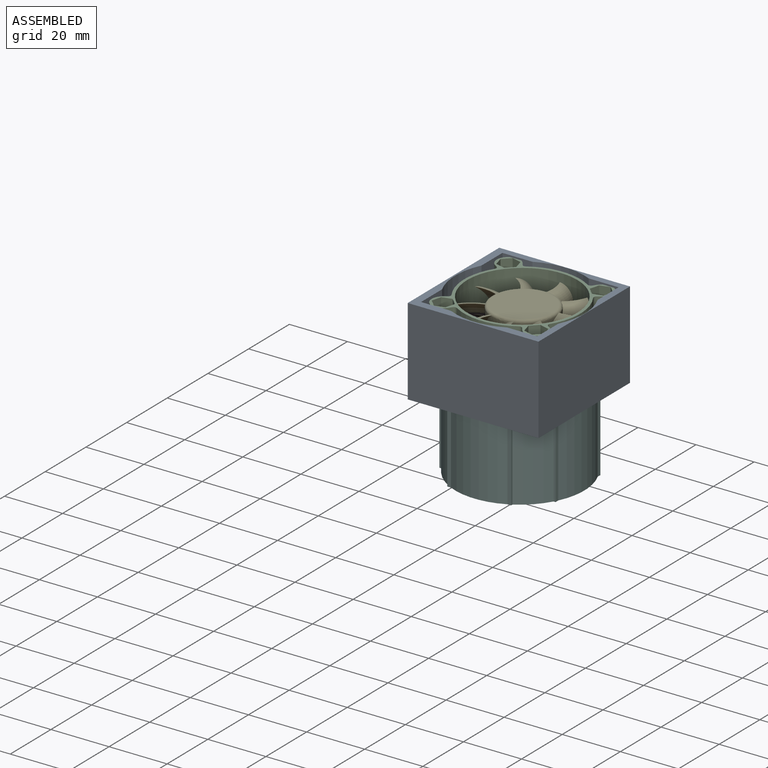
[diagram: assembled view]
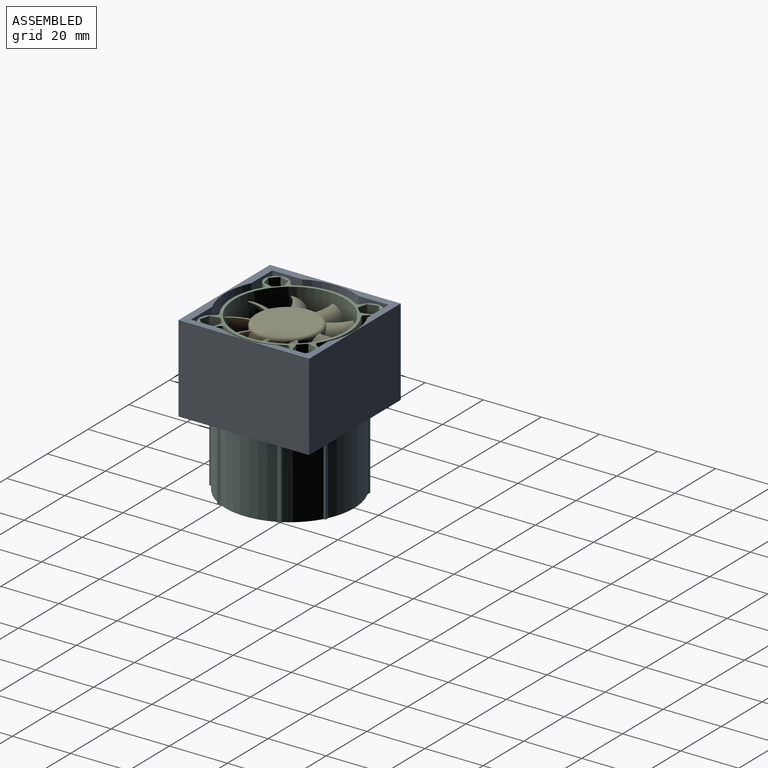
[diagram: assembled view, second angle]
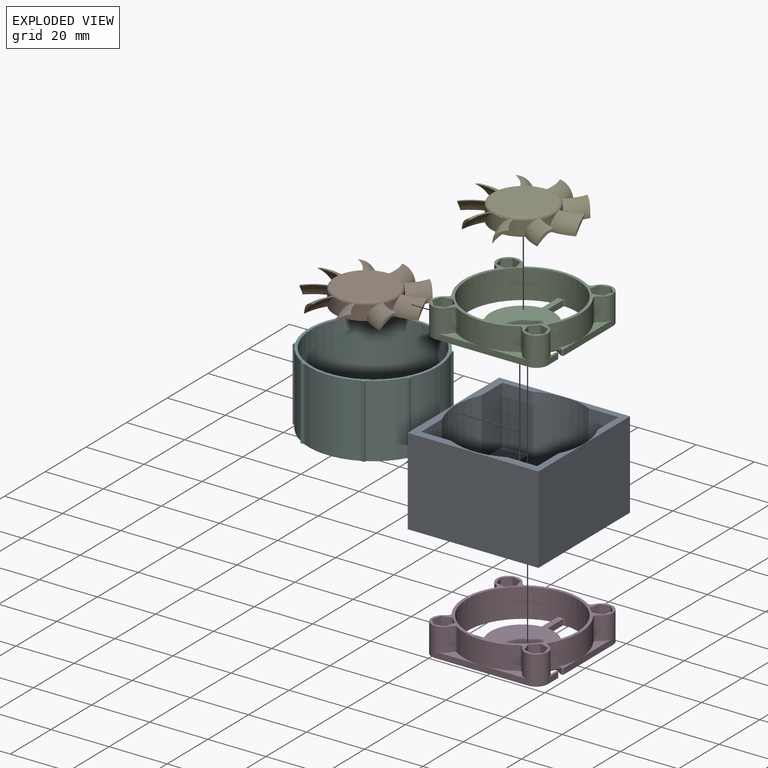
[diagram: exploded view]
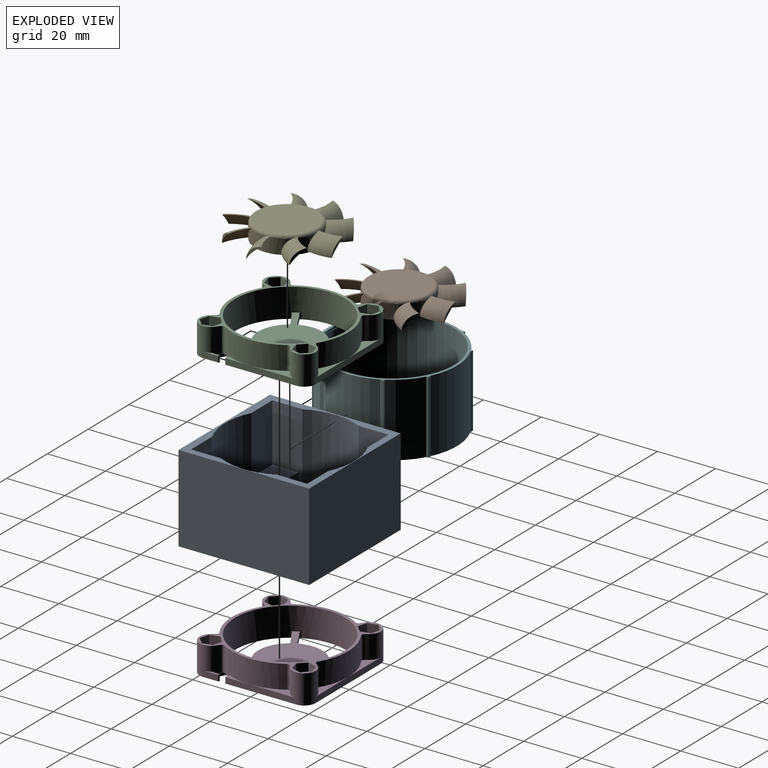
[diagram: exploded view, second angle]
ASSEMBLY  parts=6 mates=3
PART A: 30 faces, bbox 45x45x30 mm
  f0: plane 30x10.31mm, normal (-1,0,0), area 219.2mm2, adj f7,f8,f16,f17,f25,f26
  f1: plane 30x10.31mm, normal (0,-1,0), area 219.2mm2, adj f5,f6,f16,f17,f19,f20
  f2: plane 45x30mm, normal (1,0,0), area 1350mm2, adj f3,f15,f16,f17
  f3: plane 45x30mm, normal (0,1,0), area 1350mm2, adj f2,f4,f16,f17
  f4: plane 45x30mm, normal (-1,0,0), area 1350mm2, adj f3,f15,f16,f17
  f5: cylinder r=22.23mm len=30mm, axis (0,0,-1), area 601.9mm2, adj f1,f14,f16,f17
  f6: plane 30x10.31mm, normal (-1,0,0), area 219.2mm2, adj f1,f7,f16,f17,f18,f20
  f7: cylinder r=22.23mm len=30mm, axis (0,0,-1), area 601.9mm2, adj f0,f6,f16,f17
  f8: plane 30x10.31mm, normal (0,1,0), area 219.2mm2, adj f0,f9,f16,f17,f24,f26
  f9: cylinder r=22.23mm len=30mm, axis (0,0,-1), area 601.9mm2, adj f8,f10,f16,f17
  f10: plane 30x10.31mm, normal (0,1,0), area 219.2mm2, adj f9,f11,f16,f17,f28,f29
  f11: plane 30x10.31mm, normal (1,0,0), area 219.2mm2, adj f10,f12,f16,f17,f27,f29
  f12: cylinder r=22.23mm len=30mm, axis (0,0,-1), area 601.9mm2, adj f11,f13,f16,f17
  f13: plane 30x10.31mm, normal (1,0,0), area 219.2mm2, adj f12,f14,f16,f17,f22,f23
  f14: plane 30x10.31mm, normal (0,-1,0), area 219.2mm2, adj f5,f13,f16,f17,f21,f23
  f15: plane 45x30mm, normal (0,-1,0), area 1350mm2, adj f2,f4,f16,f17
  f16: plane 45x45mm, normal (0,0,1), area 308.7mm2, adj f0,f1,f2,f3,f4,f5,f6,f7
  f17: plane 45x45mm, normal (0,0,-1), area 632.7mm2, adj f0,f1,f2,f3,f4,f5,f6,f7
  f18: plane 10x9mm, normal (0,-1,0), area 90mm2, adj f6,f17,f19,f20
  f19: plane 10x9mm, normal (-1,0,0), area 90mm2, adj f1,f17,f18,f20
  f20: plane 9x9mm, normal (0,0,1), area 81mm2, adj f1,f6,f18,f19
  f21: plane 10x9mm, normal (1,0,0), area 90mm2, adj f14,f17,f22,f23
  f22: plane 10x9mm, normal (0,-1,0), area 90mm2, adj f13,f17,f21,f23
  f23: plane 9x9mm, normal (0,0,1), area 81mm2, adj f13,f14,f21,f22
  f24: plane 10x9mm, normal (-1,0,0), area 90mm2, adj f8,f17,f25,f26
  f25: plane 10x9mm, normal (0,1,0), area 90mm2, adj f0,f17,f24,f26
  f26: plane 9x9mm, normal (0,0,1), area 81mm2, adj f0,f8,f24,f25
  f27: plane 10x9mm, normal (0,1,0), area 90mm2, adj f11,f17,f28,f29
  f28: plane 10x9mm, normal (1,0,0), area 90mm2, adj f10,f17,f27,f29
  f29: plane 9x9mm, normal (0,0,1), area 81mm2, adj f10,f11,f27,f28
PART B: 32 faces, bbox 42.3x42.5x6 mm
  f0: cylinder r=11mm len=22mm, axis (0,0,-1), area 307.6mm2, adj f1,f3,f4,f5,f6,f8,f9,f11
  f1: cylinder r=11mm len=4.52mm, axis (0,0,-1), area 3.9mm2, adj f0,f4,f11
  f2: plane 20x20mm, normal (0,0,1), area 314.2mm2, adj f4
  f3: plane 22x22mm, normal (0,0,-1), area 380.1mm2, adj f0
  f4: torus R=10mm, axis (0,0,1), area 102.2mm2, adj f0,f1,f2,f5,f6,f8,f9,f11
  f5: torus R=12.73mm, axis (0,0,-1), area 60.3mm2, adj f0,f4,f6,f7
  f6: torus R=5.4mm, axis (0,0,-1), area 55.4mm2, adj f0,f4,f5,f7
  f7: cylinder r=18.8mm len=4.97mm, axis (0,0,1), area 4.5mm2, adj f5,f6
  f8: torus R=12.73mm, axis (0,0,-1), area 60.3mm2, adj f0,f4,f9,f10
  f9: torus R=5.4mm, axis (0,0,-1), area 55.4mm2, adj f0,f4,f8,f10
  f10: cylinder r=18.8mm len=4.97mm, axis (0,0,1), area 4.5mm2, adj f8,f9
  f11: torus R=12.73mm, axis (0,0,-1), area 60.3mm2, adj f0,f1,f4,f12,f13
  f12: torus R=5.4mm, axis (0,0,-1), area 55.4mm2, adj f0,f4,f11,f13
  f13: cylinder r=18.8mm len=4.97mm, axis (0,0,1), area 4.5mm2, adj f11,f12
  f14: torus R=12.73mm, axis (0,0,-1), area 60.3mm2, adj f0,f4,f15,f16
  f15: torus R=5.4mm, axis (0,0,-1), area 55.4mm2, adj f0,f4,f14,f16
  f16: cylinder r=18.8mm len=4.97mm, axis (0,0,1), area 4.5mm2, adj f14,f15
  f17: torus R=12.73mm, axis (0,0,-1), area 60.3mm2, adj f0,f4,f18,f19
  f18: torus R=5.4mm, axis (0,0,-1), area 55.4mm2, adj f0,f4,f17,f19
  f19: cylinder r=18.8mm len=4.97mm, axis (0,0,1), area 4.5mm2, adj f17,f18
  f20: torus R=12.73mm, axis (0,0,-1), area 60.3mm2, adj f0,f4,f21,f22
  f21: torus R=5.4mm, axis (0,0,-1), area 55.4mm2, adj f0,f4,f20,f22
  f22: cylinder r=18.8mm len=4.99mm, axis (0,0,1), area 4.5mm2, adj f20,f21
  f23: torus R=12.73mm, axis (0,0,-1), area 60.3mm2, adj f0,f4,f24,f25
  f24: torus R=5.4mm, axis (0,0,-1), area 55.4mm2, adj f0,f4,f23,f25
  f25: cylinder r=18.8mm len=4.97mm, axis (0,0,1), area 4.5mm2, adj f23,f24
  f26: torus R=12.73mm, axis (0,0,-1), area 60.3mm2, adj f0,f4,f27,f28
  f27: torus R=5.4mm, axis (0,0,-1), area 55.4mm2, adj f0,f4,f26,f28
  f28: cylinder r=18.8mm len=5mm, axis (0,0,1), area 4.5mm2, adj f26,f27
  f29: torus R=12.73mm, axis (0,0,-1), area 60.3mm2, adj f0,f4,f30,f31
  f30: torus R=5.4mm, axis (0,0,-1), area 55.4mm2, adj f0,f4,f29,f31
  f31: cylinder r=18.8mm len=4.97mm, axis (0,0,1), area 4.5mm2, adj f29,f30
PART C: 115 faces, bbox 40x40x10 mm
  f0: plane 10.28x5.94mm, normal (0.5,0.87,0), area 11.9mm2, adj f19,f33,f35,f80,f81,f82
  f1: plane 2x1.78mm, normal (-1,0,0), area 3.6mm2, adj f8,f33,f81,f97
  f2: plane 16x3.21mm, normal (0,0,1), area 18mm2, adj f26,f27,f56,f57,f100
  f3: plane 16x3.21mm, normal (0,0,1), area 18mm2, adj f25,f26,f65,f69,f106
  f4: plane 16x3.21mm, normal (0,0,1), area 18mm2, adj f21,f22,f34,f60,f102
  f5: plane 16x3.21mm, normal (0,0,1), area 18mm2, adj f23,f24,f62,f63,f104
  f6: plane 16x3.21mm, normal (0,0,1), area 18mm2, adj f27,f28,f57,f58,f101
  f7: plane 35.04x31.24mm, normal (0,0,1), area 457.1mm2, adj f12,f13,f14,f15,f16,f17,f18,f30
  f8: plane 5.45x1.07mm, normal (0,0,1), area 3mm2, adj f1,f28,f29,f81,f96,f97
  f9: plane 16x3.21mm, normal (0,0,1), area 18mm2, adj f22,f23,f61,f62,f103
  f10: plane 8.58x1.89mm, normal (0,0,1), area 5.1mm2, adj f20,f21,f34,f76,f89
  f11: plane 16x3.21mm, normal (0,0,1), area 18mm2, adj f24,f25,f64,f65,f105
  f12: plane 7.04x2mm, normal (1,0,0), area 14.1mm2, adj f7,f33,f87,f92
  f13: cylinder r=19mm len=38mm, axis (0,0,1), area 1168mm2, adj f7,f33,f71,f83,f84,f85,f86,f87
  f14: plane 6.22x3.59mm, normal (0.5,0.87,0), area 14.4mm2, adj f7,f33,f88,f95
  f15: plane 6.09x3.52mm, normal (0.5,-0.87,0), area 14.1mm2, adj f7,f33,f84,f90
  f16: cylinder r=11mm len=16.31mm, axis (0,0,1), area 36.9mm2, adj f7,f33,f90,f94
  f17: plane 6.09x3.52mm, normal (-0.5,0.87,0), area 14.1mm2, adj f7,f33,f85,f91
  f18: plane 7.04x2mm, normal (-1,0,0), area 14.1mm2, adj f7,f33,f86,f93
  f19: cylinder r=11mm len=3.9mm, axis (0,0,1), area 4.4mm2, adj f0,f20,f33,f35,f77
  f20: plane 8.8x5.08mm, normal (-0.5,-0.87,0), area 6.1mm2, adj f10,f19,f33,f76,f77,f78,f89
  f21: plane 24.08x2mm, normal (1,0,0), area 48.2mm2, adj f4,f10,f22,f33,f89
  f22: cylinder r=4mm len=10mm, axis (0,0,1), area 124.5mm2, adj f4,f9,f21,f23,f33,f60,f61,f71
  f23: plane 32x2mm, normal (0,1,0), area 64mm2, adj f5,f9,f22,f24,f33
  f24: cylinder r=4mm len=10mm, axis (0,0,1), area 124.5mm2, adj f5,f11,f23,f25,f33,f63,f64,f71
  f25: plane 32x2mm, normal (-1,0,0), area 64mm2, adj f3,f11,f24,f26,f33
  f26: cylinder r=4mm len=10mm, axis (0,0,1), area 124.5mm2, adj f2,f3,f25,f27,f33,f56,f69,f71
  f27: plane 32x2mm, normal (0,-1,0), area 64mm2, adj f2,f6,f26,f28,f33
  f28: cylinder r=4mm len=10mm, axis (0,0,1), area 124.9mm2, adj f6,f8,f27,f29,f33,f58,f59,f71
  f29: plane 4.96x2mm, normal (1,0,0), area 9.9mm2, adj f8,f28,f33,f96
  f30: plane 6.22x3.59mm, normal (-0.5,-0.87,0), area 14.4mm2, adj f7,f33,f83,f94
  f31: cylinder r=11mm len=15.12mm, axis (0,0,1), area 40.3mm2, adj f7,f33,f91,f93
  f32: cylinder r=11mm len=13.49mm, axis (0,0,1), area 36.9mm2, adj f7,f33,f92,f95
  f33: plane 40x40mm, normal (0,0,-1), area 793.4mm2, adj f0,f1,f12,f13,f14,f15,f16,f17
  f34: cylinder r=20mm len=21.25mm, axis (0,0,1), area 180.4mm2, adj f4,f10,f71,f76,f79,f98,f102
  f35: plane 9.49x8.4mm, normal (0,0,-1), area 34.2mm2, adj f0,f19,f77,f79,f80
  f36: plane 3.35x3mm, normal (-0.26,-0.97,0), area 10.4mm2, adj f37,f70,f71,f75
  f37: plane 3.35x3mm, normal (-0.97,-0.26,0), area 10.4mm2, adj f36,f38,f71,f75
  f38: plane 3x2.45mm, normal (-0.71,0.71,0), area 10.4mm2, adj f37,f39,f71,f75
  f39: plane 3.35x3mm, normal (0.26,0.97,0), area 10.4mm2, adj f38,f40,f71,f75
  f40: plane 3.35x3mm, normal (0.97,0.26,0), area 10.4mm2, adj f39,f70,f71,f75
  f41: plane 3x2.45mm, normal (-0.71,0.71,0), area 10.4mm2, adj f42,f66,f71,f73
  f42: plane 3.35x3mm, normal (0.26,0.97,0), area 10.4mm2, adj f41,f43,f71,f73
  f43: plane 3.35x3mm, normal (0.97,0.26,0), area 10.4mm2, adj f42,f44,f71,f73
  f44: plane 3x2.45mm, normal (0.71,-0.71,0), area 10.4mm2, adj f43,f45,f71,f73
  f45: plane 3.35x3mm, normal (-0.26,-0.97,0), area 10.4mm2, adj f44,f66,f71,f73
  f46: plane 3.35x3mm, normal (-0.97,0.26,0), area 10.4mm2, adj f47,f67,f71,f72
  f47: plane 3.35x3mm, normal (-0.26,0.97,0), area 10.4mm2, adj f46,f48,f71,f72
  f48: plane 3x2.45mm, normal (0.71,0.71,0), area 10.4mm2, adj f47,f49,f71,f72
  f49: plane 3.35x3mm, normal (0.97,-0.26,0), area 10.4mm2, adj f48,f50,f71,f72
  f50: plane 3.35x3mm, normal (0.26,-0.97,0), area 10.4mm2, adj f49,f67,f71,f72
  f51: plane 3x2.45mm, normal (-0.71,-0.71,0), area 10.4mm2, adj f52,f68,f71,f74
  f52: plane 3.35x3mm, normal (-0.97,0.26,0), area 10.4mm2, adj f51,f53,f71,f74
  f53: plane 3.35x3mm, normal (-0.26,0.97,0), area 10.4mm2, adj f52,f54,f71,f74
  f54: plane 3x2.45mm, normal (0.71,0.71,0), area 10.4mm2, adj f53,f55,f71,f74
  f55: plane 3.35x3mm, normal (0.97,-0.26,0), area 10.4mm2, adj f54,f68,f71,f74
  f56: plane 8x1.06mm, normal (0.82,-0.57,0), area 10.4mm2, adj f2,f26,f71,f100
  f57: cylinder r=20mm len=21.25mm, axis (0,0,-1), area 179.2mm2, adj f2,f6,f71,f100,f101
  f58: plane 8x1.06mm, normal (-0.82,-0.57,0), area 10.4mm2, adj f6,f28,f71,f101
  f59: plane 8.5x1.06mm, normal (0.57,0.82,0), area 11mm2, adj f28,f71,f80,f98
  f60: plane 8x1.06mm, normal (0.57,-0.82,0), area 10.4mm2, adj f4,f22,f71,f102
  f61: plane 8x1.06mm, normal (-0.82,0.57,0), area 10.4mm2, adj f9,f22,f71,f103
  f62: cylinder r=20mm len=21.25mm, axis (0,0,-1), area 179.2mm2, adj f5,f9,f71,f103,f104
  f63: plane 8x1.06mm, normal (0.82,0.57,0), area 10.4mm2, adj f5,f24,f71,f104
  f64: plane 8x1.06mm, normal (-0.57,-0.82,0), area 10.4mm2, adj f11,f24,f71,f105
  f65: cylinder r=20mm len=21.25mm, axis (0,0,-1), area 179.2mm2, adj f3,f11,f71,f105,f106
  f66: plane 3.35x3mm, normal (-0.97,-0.26,0), area 10.4mm2, adj f41,f45,f71,f73
  f67: plane 3x2.45mm, normal (-0.71,-0.71,0), area 10.4mm2, adj f46,f50,f71,f72
  f68: plane 3.35x3mm, normal (0.26,-0.97,0), area 10.4mm2, adj f51,f55,f71,f74
  f69: plane 8x1.06mm, normal (-0.57,0.82,0), area 10.4mm2, adj f3,f26,f71,f106
  f70: plane 3x2.45mm, normal (0.71,-0.71,0), area 10.4mm2, adj f36,f40,f71,f75
  f71: plane 40x40mm, normal (0,0,1), area 183.3mm2, adj f13,f22,f24,f26,f28,f34,f36,f37
  f72: plane 6.69x6.69mm, normal (0,0,1), area 22.6mm2, adj f46,f47,f48,f49,f50,f67,f111
  f73: plane 6.69x6.69mm, normal (0,0,1), area 22.6mm2, adj f41,f42,f43,f44,f45,f66,f109
  f74: plane 6.69x6.69mm, normal (0,0,1), area 22.6mm2, adj f51,f52,f53,f54,f55,f68,f107
  f75: plane 6.69x6.69mm, normal (0,0,1), area 22.6mm2, adj f36,f37,f38,f39,f40,f70,f113
  f76: cylinder r=0.5mm len=0.7mm, axis (0,0,1), area 0.4mm2, adj f10,f20,f34,f78
  f77: cylinder r=0.5mm len=7.74mm, axis (0.87,-0.5,0), area 6.8mm2, adj f19,f20,f35,f78
  f78: bspline ~1.22x1.19mm, area 0.9mm2, adj f20,f76,f77,f79
  f79: torus R=19.5mm, axis (0,0,1), area 2.5mm2, adj f34,f35,f78,f99
  f80: cylinder r=0.5mm len=2.57mm, axis (0.82,-0.57,0), area 1.5mm2, adj f0,f35,f59,f82,f99
  f81: cylinder r=0.5mm len=2mm, axis (0,0,-1), area 1.7mm2, adj f0,f1,f8,f28,f33,f82
  f82: torus R=3.5mm, axis (0,0,1), area 0.4mm2, adj f0,f28,f80,f81
  f83: cylinder r=0.5mm len=2mm, axis (0,0,1), area 1.7mm2, adj f7,f13,f30,f33
  f84: cylinder r=0.5mm len=2mm, axis (0,0,1), area 1.7mm2, adj f7,f13,f15,f33
  f85: cylinder r=0.5mm len=2mm, axis (0,0,1), area 1.7mm2, adj f7,f13,f17,f33
  f86: cylinder r=0.5mm len=2mm, axis (0,0,1), area 1.7mm2, adj f7,f13,f18,f33
  f87: cylinder r=0.5mm len=2mm, axis (0,0,1), area 1.7mm2, adj f7,f12,f13,f33
  f88: cylinder r=0.5mm len=2mm, axis (0,0,1), area 1.7mm2, adj f7,f13,f14,f33
  f89: cylinder r=0.5mm len=2mm, axis (0,0,-1), area 2.1mm2, adj f10,f20,f21,f33
  f90: cylinder r=0.5mm len=2mm, axis (0,0,1), area 1.4mm2, adj f7,f15,f16,f33
  f91: cylinder r=0.5mm len=2mm, axis (0,0,1), area 1.4mm2, adj f7,f17,f31,f33
  f92: cylinder r=0.5mm len=2mm, axis (0,0,1), area 1.4mm2, adj f7,f12,f32,f33
  f93: cylinder r=0.5mm len=2mm, axis (0,0,1), area 1.4mm2, adj f7,f18,f31,f33
  f94: cylinder r=0.5mm len=2mm, axis (0,0,1), area 1.3mm2, adj f7,f16,f30,f33
  f95: cylinder r=0.5mm len=2mm, axis (0,0,1), area 1.3mm2, adj f7,f14,f32,f33
  f96: cylinder r=0.5mm len=2mm, axis (0,0,1), area 1.4mm2, adj f8,f29,f33,f97
  f97: cylinder r=0.5mm len=2mm, axis (0,0,1), area 1.4mm2, adj f1,f8,f33,f96
  f98: cylinder r=1mm len=8.5mm, axis (0,0,1), area 12.9mm2, adj f34,f59,f71,f99
  f99: bspline ~1.5x1.35mm, area 0.5mm2, adj f79,f80,f98
  f100: cylinder r=1mm len=8mm, axis (0,0,-1), area 12.2mm2, adj f2,f56,f57,f71
  f101: cylinder r=1mm len=8mm, axis (0,0,-1), area 12.2mm2, adj f6,f57,f58,f71
  f102: cylinder r=1mm len=8mm, axis (0,0,1), area 12.2mm2, adj f4,f34,f60,f71
  f103: cylinder r=1mm len=8mm, axis (0,0,-1), area 12.2mm2, adj f9,f61,f62,f71
  f104: cylinder r=1mm len=8mm, axis (0,0,-1), area 12.2mm2, adj f5,f62,f63,f71
  f105: cylinder r=1mm len=8mm, axis (0,0,-1), area 12.2mm2, adj f11,f64,f65,f71
  f106: cylinder r=1mm len=8mm, axis (0,0,-1), area 12.2mm2, adj f3,f65,f69,f71
  f107: cylinder r=1.65mm len=6.4mm, axis (0,0,-1), area 66.4mm2, adj f74,f108
  f108: cone r=1.65mm half-angle=45deg, axis (0,0,-1), area 10.4mm2, adj f33,f107
  f109: cylinder r=1.65mm len=6.4mm, axis (0,0,-1), area 66.4mm2, adj f73,f110
  f110: cone r=1.65mm half-angle=45deg, axis (0,0,-1), area 10.4mm2, adj f33,f109
  f111: cylinder r=1.65mm len=6.4mm, axis (0,0,-1), area 66.4mm2, adj f72,f112
  f112: cone r=1.65mm half-angle=45deg, axis (0,0,-1), area 10.4mm2, adj f33,f111
  f113: cylinder r=1.65mm len=6.4mm, axis (0,0,-1), area 66.4mm2, adj f75,f114
  f114: cone r=1.65mm half-angle=45deg, axis (0,0,-1), area 10.4mm2, adj f33,f113
PART D: same geometry as C
PART E: same geometry as B
PART F: 27 faces, bbox 44.5x44.5x25 mm
  f0: cylinder r=22.23mm len=25mm, axis (0,0,1), area 501.6mm2, adj f1,f24,f25,f26
  f1: plane 25x1.31mm, normal (0,1,0), area 32.6mm2, adj f0,f2,f25,f26
  f2: plane 25x0.69mm, normal (-1,0,0), area 17.2mm2, adj f1,f3,f25,f26
  f3: cylinder r=22.23mm len=25mm, axis (0,0,1), area 297.4mm2, adj f2,f4,f25,f26
  f4: plane 25x0.69mm, normal (0,1,0), area 17.2mm2, adj f3,f5,f25,f26
  f5: plane 25x1.31mm, normal (-1,0,0), area 32.6mm2, adj f4,f6,f25,f26
  f6: cylinder r=22.23mm len=25mm, axis (0,0,1), area 501.6mm2, adj f5,f7,f25,f26
  f7: plane 25x1.31mm, normal (-1,0,0), area 32.6mm2, adj f6,f8,f25,f26
  f8: plane 25x0.69mm, normal (0,-1,0), area 17.2mm2, adj f7,f9,f25,f26
  f9: cylinder r=22.23mm len=25mm, axis (0,0,1), area 297.4mm2, adj f8,f10,f25,f26
  f10: plane 25x0.69mm, normal (-1,0,0), area 17.2mm2, adj f9,f11,f25,f26
  f11: plane 25x1.31mm, normal (0,-1,0), area 32.6mm2, adj f10,f12,f25,f26
  f12: cylinder r=22.23mm len=25mm, axis (0,0,1), area 501.6mm2, adj f11,f13,f25,f26
  f13: plane 25x1.31mm, normal (0,-1,0), area 32.6mm2, adj f12,f14,f25,f26
  f14: plane 25x0.69mm, normal (1,0,0), area 17.2mm2, adj f13,f15,f25,f26
  f15: cylinder r=22.23mm len=25mm, axis (0,0,1), area 297.4mm2, adj f14,f16,f25,f26
  f16: plane 25x0.69mm, normal (0,-1,0), area 17.2mm2, adj f15,f17,f25,f26
  f17: plane 25x1.31mm, normal (1,0,0), area 32.6mm2, adj f16,f18,f25,f26
  f18: cylinder r=22.23mm len=25mm, axis (0,0,1), area 501.6mm2, adj f17,f19,f25,f26
  f19: plane 25x1.31mm, normal (1,0,0), area 32.6mm2, adj f18,f20,f25,f26
  f20: plane 25x0.69mm, normal (0,1,0), area 17.2mm2, adj f19,f21,f25,f26
  f21: cylinder r=22.23mm len=25mm, axis (0,0,1), area 297.4mm2, adj f20,f22,f25,f26
  f22: plane 25x0.69mm, normal (1,0,0), area 17.2mm2, adj f21,f24,f25,f26
  f23: cylinder r=21.29mm len=42.59mm, axis (0,0,1), area 3344.9mm2, adj f25,f26
  f24: plane 25x1.31mm, normal (0,1,0), area 32.6mm2, adj f0,f22,f25,f26
  f25: plane 44.45x44.45mm, normal (0,0,-1), area 130.8mm2, adj f0,f1,f2,f3,f4,f5,f6,f7
  f26: plane 44.45x44.45mm, normal (0,0,1), area 130.8mm2, adj f0,f1,f2,f3,f4,f5,f6,f7
PLACE A t=(-21.49,-41.58,-17.29)mm
PLACE B t=(-20.99,-41.08,-5.89)mm
PLACE C t=(-20.99,-41.08,4.11)mm
PLACE D t=(-20.99,-41.08,-5.89)mm
PLACE E t=(-20.19,-41.54,3.11)mm
PLACE F rot(axis=(1,0,0),180deg) t=(-21.49,-41.58,-42.29)mm
MATE fastened E.f0 <-> C.f7  axis (0,0,-1) through (-20.19,-41.54,4.11)mm
MATE fastened F.f23 <-> A.f5  axis (0,0,-1) through (-21.49,-41.58,-17.29)mm
MATE fastened C.f24 <-> D.f24  axis (0,0,-1) through (-36.99,-25.08,2.11)mm
